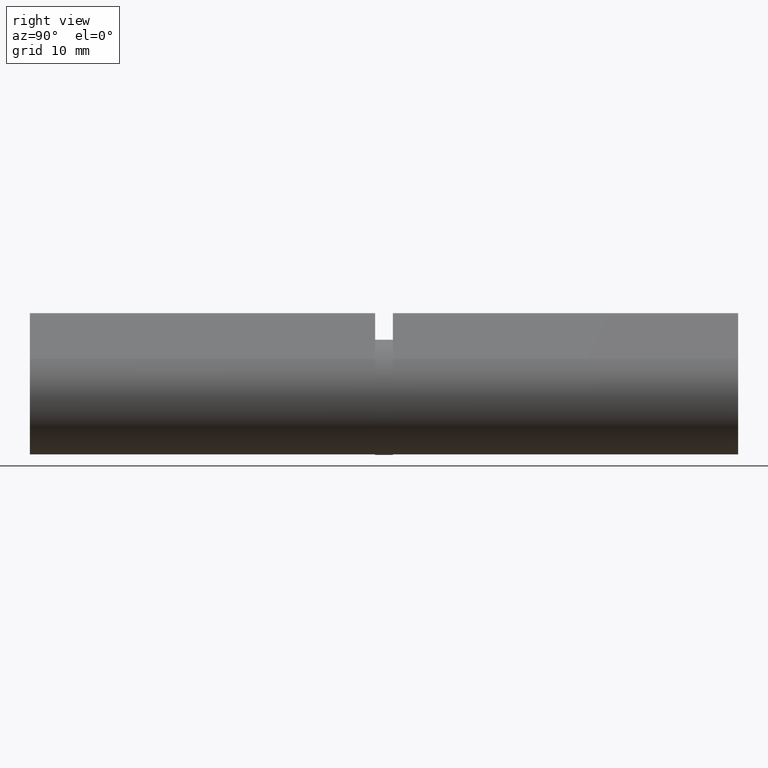
[diagram: clean part render]
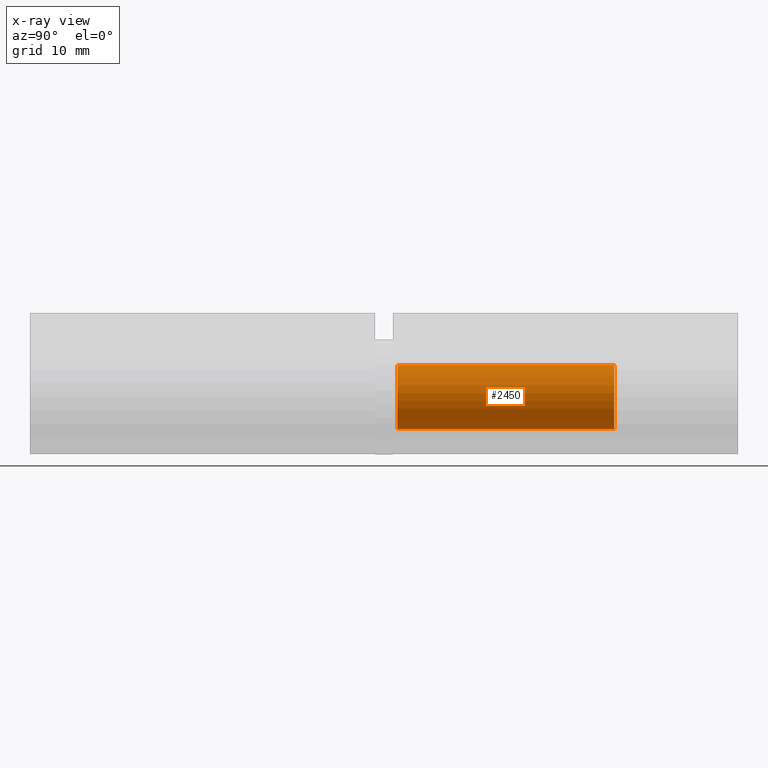
[diagram: x-ray — body ghosted, one internal face saturated and labeled with its STEP entity id]
A machine part, right view, then the same camera in x-ray: the body is ghosted and one INTERNAL B-rep face — a face not visible from any outside direction — is saturated and labeled: STEP entity #2450.
In plain terms, the highlighted cylindrical surface (bore or boss wall) has radius 3.625 mm, axis along (0, -1, 0).
Its self-contained STEP definition (entity closure, byte-faithful):
#618 = ORIENTED_EDGE ( 'NONE', *, *, #3859, .F. ) ;
#1270 = AXIS2_PLACEMENT_3D ( 'NONE', #12880, #10781, #4176 ) ;
#1369 = EDGE_CURVE ( 'NONE', #9427, #9427, #2189, .T. ) ;
#1492 = FACE_OUTER_BOUND ( 'NONE', #3815, .T. ) ;
#2189 = CIRCLE ( 'NONE', #1270, 3.625000000000000000 ) ;
#2450 = ADVANCED_FACE ( 'NONE', ( #1492, #9196 ), #12541, .F. ) ;
#3210 = CARTESIAN_POINT ( 'NONE',  ( 0.000000000000000000, -5.500000000000005329, 0.000000000000000000 ) ) ;
#3494 = EDGE_LOOP ( 'NONE', ( #618 ) ) ;
#3815 = EDGE_LOOP ( 'NONE', ( #6043 ) ) ;
#3859 = EDGE_CURVE ( 'NONE', #5552, #5552, #9505, .T. ) ;
#4176 = DIRECTION ( 'NONE',  ( 0.000000000000000000, 0.000000000000000000, 1.000000000000000000 ) ) ;
#5552 = VERTEX_POINT ( 'NONE', #5903 ) ;
#5903 = CARTESIAN_POINT ( 'NONE',  ( 0.000000000000000000, -5.500000000000005329, 3.625000000000000000 ) ) ;
#6043 = ORIENTED_EDGE ( 'NONE', *, *, #1369, .T. ) ;
#6473 = AXIS2_PLACEMENT_3D ( 'NONE', #10446, #12593, #11691 ) ;
#7106 = AXIS2_PLACEMENT_3D ( 'NONE', #3210, #12795, #12750 ) ;
#9196 = FACE_OUTER_BOUND ( 'NONE', #3494, .T. ) ;
#9427 = VERTEX_POINT ( 'NONE', #12425 ) ;
#9505 = CIRCLE ( 'NONE', #7106, 3.625000000000000000 ) ;
#10446 = CARTESIAN_POINT ( 'NONE',  ( 0.000000000000000000, -5.500000000000005329, 0.000000000000000000 ) ) ;
#10781 = DIRECTION ( 'NONE',  ( 0.000000000000000000, 1.000000000000000000, 0.000000000000000000 ) ) ;
#11691 = DIRECTION ( 'NONE',  ( 0.000000000000000000, 0.000000000000000000, 1.000000000000000000 ) ) ;
#12425 = CARTESIAN_POINT ( 'NONE',  ( 0.000000000000000000, 19.00000000000000355, 3.625000000000000000 ) ) ;
#12541 = CYLINDRICAL_SURFACE ( 'NONE', #6473, 3.625000000000000000 ) ;
#12593 = DIRECTION ( 'NONE',  ( 0.000000000000000000, 1.000000000000000000, 0.000000000000000000 ) ) ;
#12750 = DIRECTION ( 'NONE',  ( 0.000000000000000000, 0.000000000000000000, 1.000000000000000000 ) ) ;
#12795 = DIRECTION ( 'NONE',  ( 0.000000000000000000, 1.000000000000000000, 0.000000000000000000 ) ) ;
#12880 = CARTESIAN_POINT ( 'NONE',  ( 0.000000000000000000, 19.00000000000000355, 0.000000000000000000 ) ) ;